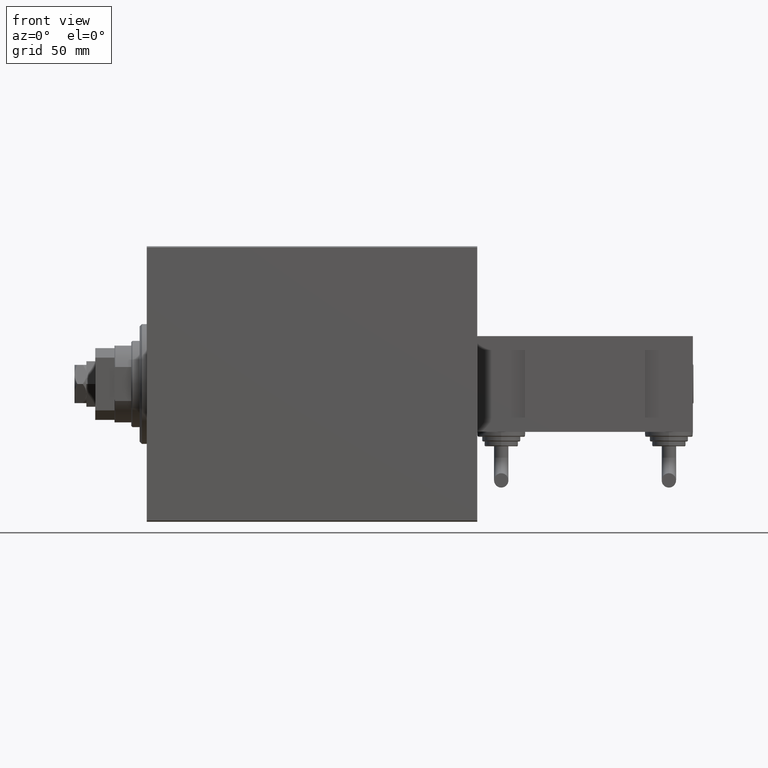
[diagram: clean part render]
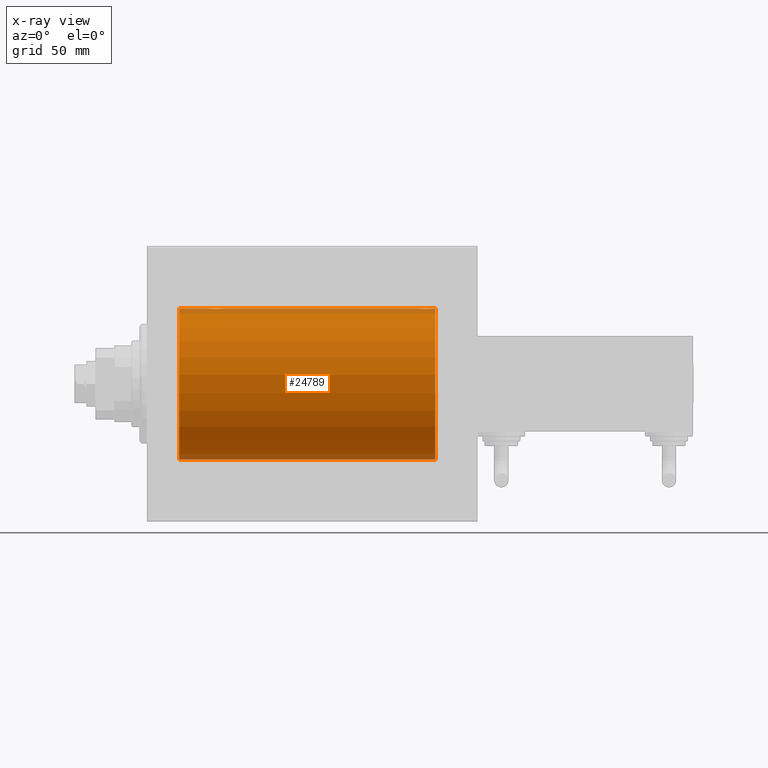
[diagram: x-ray — body ghosted, one internal face saturated and labeled with its STEP entity id]
A machine part, front view, then the same camera in x-ray: the body is ghosted and one INTERNAL B-rep face — a face not visible from any outside direction — is saturated and labeled: STEP entity #24789.
In plain terms, the highlighted cylindrical surface (partial cylindrical patch) has radius 31.5 mm, axis along (-1, -0, -0).
Its self-contained STEP definition (entity closure, byte-faithful):
#1268 = B_SPLINE_CURVE_WITH_KNOTS ( 'NONE', 3,
 ( #24838, #40250, #5621, #21028, #31437, #12204, #27628, #39264, #18229, #45036, #25068, #48840, #9892, #17979, #28876, #44285, #33666, #48092, #22028, #36711, #29366, #44523, #2841, #10144, #6607, #21273, #44781, #17230, #45274, #21774, #49090, #13688 ),
 .UNSPECIFIED., .F., .F.,
 ( 4, 2, 2, 2, 2, 2, 2, 2, 2, 2, 2, 2, 2, 2, 2, 4 ),
 ( 0.009384682587134639611, 0.009971088165454038837, 0.01055749374377343980, 0.01114389932209284076, 0.01173030490041223999, 0.01231671047873163921, 0.01290311605705104017, 0.01348952163537044113, 0.01407592721368984036, 0.01466233279200923958, 0.01524873837032864055, 0.01583514394864804151, 0.01642154952696744247, 0.01700795510528683996, 0.01759436068360624092, 0.01876717184024503243 ),
 .UNSPECIFIED. ) ;
#2191 = LINE ( 'NONE', #48432, #19058 ) ;
#2254 = DIRECTION ( 'NONE',  ( 0.000000000000000000, 0.000000000000000000, 1.000000000000000000 ) ) ;
#2330 = CARTESIAN_POINT ( 'NONE',  ( 32.00000000000000000, -3.906065418435112189E-16, 31.50000000000000000 ) ) ;
#2841 = CARTESIAN_POINT ( 'NONE',  ( 30.50098156296146712, -2.604888532024788983, 31.39229907792058683 ) ) ;
#2929 = VERTEX_POINT ( 'NONE', #42313 ) ;
#3257 = CARTESIAN_POINT ( 'NONE',  ( 115.7211808735768699, -2.903733559410697662, 31.36590199989305106 ) ) ;
#3387 = AXIS2_PLACEMENT_3D ( 'NONE', #25238, #6032, #2254 ) ;
#3565 = CARTESIAN_POINT ( 'NONE',  ( 13.49999999999999822, 3.857637417314162689E-15, -31.50000000000000000 ) ) ;
#4017 = CARTESIAN_POINT ( 'NONE',  ( 119.5000000000000284, -2.415502498297804861E-16, 31.50000000000000000 ) ) ;
#4487 = LINE ( 'NONE', #19890, #15845 ) ;
#5452 = EDGE_CURVE ( 'NONE', #44472, #33683, #25632, .T. ) ;
#5621 = CARTESIAN_POINT ( 'NONE',  ( 26.01898490608483527, -0.3904857149112033743, 31.49817436802766935 ) ) ;
#6032 = DIRECTION ( 'NONE',  ( -1.000000000000000000, 0.000000000000000000, 0.000000000000000000 ) ) ;
#6607 = CARTESIAN_POINT ( 'NONE',  ( 30.98143462873041898, -2.261012035264782227, 31.41905495618429356 ) ) ;
#7541 = CARTESIAN_POINT ( 'NONE',  ( 119.1019214043915468, -1.506272792558327245, 31.46439306106695710 ) ) ;
#7799 = CARTESIAN_POINT ( 'NONE',  ( 116.6958229443944361, -3.000152387858496805, 31.35680286115500337 ) ) ;
#8040 = CARTESIAN_POINT ( 'NONE',  ( 114.5153964007534029, -2.258226318633800300, 31.41925597582826413 ) ) ;
#8251 = AXIS2_PLACEMENT_3D ( 'NONE', #19984, #30863, #38700 ) ;
#8651 = DIRECTION ( 'NONE',  ( 0.000000000000000000, 0.000000000000000000, 1.000000000000000000 ) ) ;
#9892 = CARTESIAN_POINT ( 'NONE',  ( 27.66760041900836953, -2.695056442718533507, 31.38458855656185875 ) ) ;
#10144 = CARTESIAN_POINT ( 'NONE',  ( 30.82704225370267892, -2.387531469909770276, 31.40957782495776129 ) ) ;
#10183 = ORIENTED_EDGE ( 'NONE', *, *, #39575, .F. ) ;
#10735 = VERTEX_POINT ( 'NONE', #37708 ) ;
#11318 = CARTESIAN_POINT ( 'NONE',  ( 113.5189849060848672, -0.3904857149112073711, 31.49817436802766935 ) ) ;
#11576 = CARTESIAN_POINT ( 'NONE',  ( 114.2390453754387067, -1.981494824113344322, 31.43792153503156683 ) ) ;
#11828 = CARTESIAN_POINT ( 'NONE',  ( 118.0009815629615133, -2.604888532024798309, 31.39229907792057972 ) ) ;
#12204 = CARTESIAN_POINT ( 'NONE',  ( 26.30285761163300151, -1.328004386210305698, 31.47251238182140298 ) ) ;
#12726 = ORIENTED_EDGE ( 'NONE', *, *, #17596, .T. ) ;
#13688 = CARTESIAN_POINT ( 'NONE',  ( 32.00000000000000000, -3.906065418435112189E-16, 31.50000000000000000 ) ) ;
#14390 = CARTESIAN_POINT ( 'NONE',  ( 113.5000000000000142, -2.116947682205846230E-23, 31.50000000000000000 ) ) ;
#14599 = CARTESIAN_POINT ( 'NONE',  ( 117.8286541468751238, -2.696917666262913738, 31.38442820068732075 ) ) ;
#14852 = CARTESIAN_POINT ( 'NONE',  ( 118.4814346287304403, -2.261012035264784892, 31.41905495618427935 ) ) ;
#14958 = EDGE_CURVE ( 'NONE', #27513, #40704, #40495, .T. ) ;
#14971 = AXIS2_PLACEMENT_3D ( 'NONE', #17202, #28349, #8651 ) ;
#15112 = CARTESIAN_POINT ( 'NONE',  ( 113.5000000000000284, -0.1958045626907495562, 31.50000000000000000 ) ) ;
#15358 = CARTESIAN_POINT ( 'NONE',  ( 113.5000000000000142, -2.116947682205846230E-23, 31.50000000000000000 ) ) ;
#15538 = EDGE_CURVE ( 'NONE', #30591, #27513, #21317, .T. ) ;
#15621 = CARTESIAN_POINT ( 'NONE',  ( 113.8958221872527332, -1.502389880413010026, 31.46458023642405877 ) ) ;
#15845 = VECTOR ( 'NONE', #42643, 1000.000000000000000 ) ;
#17202 = CARTESIAN_POINT ( 'NONE',  ( 120.5000000000000000, 0.000000000000000000, 0.000000000000000000 ) ) ;
#17230 = CARTESIAN_POINT ( 'NONE',  ( 31.60192140439154684, -1.506272792558323470, 31.46439306106697131 ) ) ;
#17596 = EDGE_CURVE ( 'NONE', #10735, #33683, #1268, .T. ) ;
#17766 = CARTESIAN_POINT ( 'NONE',  ( 120.5000000000000000, 3.857637417314162689E-15, -31.50000000000000000 ) ) ;
#17979 = CARTESIAN_POINT ( 'NONE',  ( 28.03055544341478722, -2.845838211243333138, 31.37127560316186603 ) ) ;
#18229 = CARTESIAN_POINT ( 'NONE',  ( 26.73904537543869608, -1.981494824113328779, 31.43792153503155973 ) ) ;
#18900 = CARTESIAN_POINT ( 'NONE',  ( 115.5305554434148263, -2.845838211243349569, 31.37127560316188024 ) ) ;
#19058 = VECTOR ( 'NONE', #44631, 1000.000000000000000 ) ;
#19658 = CARTESIAN_POINT ( 'NONE',  ( 114.6695630851300081, -2.384935707362449087, 31.40977595730572958 ) ) ;
#19890 = CARTESIAN_POINT ( 'NONE',  ( 120.5000000000000000, 0.000000000000000000, 31.50000000000000000 ) ) ;
#19984 = CARTESIAN_POINT ( 'NONE',  ( 120.5000000000000000, 0.000000000000000000, 0.000000000000000000 ) ) ;
#21028 = CARTESIAN_POINT ( 'NONE',  ( 26.09580549261944427, -0.7775502215293862429, 31.49099686045558144 ) ) ;
#21087 = CARTESIAN_POINT ( 'NONE',  ( 120.5000000000000000, 0.000000000000000000, 31.50000000000000000 ) ) ;
#21273 = CARTESIAN_POINT ( 'NONE',  ( 31.25824501903266039, -1.984587626072074285, 31.43772577203672469 ) ) ;
#21317 = LINE ( 'NONE', #17766, #34085 ) ;
#21526 = EDGE_CURVE ( 'NONE', #44472, #43252, #48660, .T. ) ;
#21774 = CARTESIAN_POINT ( 'NONE',  ( 31.92020662950040943, -0.7905881588836116691, 31.49214662150068378 ) ) ;
#22028 = CARTESIAN_POINT ( 'NONE',  ( 29.39114547339941552, -2.980809450819701834, 31.35867074198615967 ) ) ;
#23246 = ORIENTED_EDGE ( 'NONE', *, *, #49272, .F. ) ;
#23318 = CARTESIAN_POINT ( 'NONE',  ( 120.5000000000000000, 3.857637417314162689E-15, -31.50000000000000000 ) ) ;
#23451 = CARTESIAN_POINT ( 'NONE',  ( 116.8911454733994617, -2.980809450819711159, 31.35867074198615967 ) ) ;
#24239 = ORIENTED_EDGE ( 'NONE', *, *, #14958, .T. ) ;
#24789 = ADVANCED_FACE ( 'NONE', ( #28850 ), #28104, .F. ) ;
#24838 = CARTESIAN_POINT ( 'NONE',  ( 26.00000000000000355, -2.117263226567934635E-23, 31.50000000000000000 ) ) ;
#25068 = CARTESIAN_POINT ( 'NONE',  ( 27.16956308512997964, -2.384935707362437096, 31.40977595730572958 ) ) ;
#25238 = CARTESIAN_POINT ( 'NONE',  ( 13.49999999999999822, 0.000000000000000000, 0.000000000000000000 ) ) ;
#25632 = LINE ( 'NONE', #21087, #41383 ) ;
#26719 = EDGE_LOOP ( 'NONE', ( #10183, #39783, #24239, #23246, #12726, #33372, #39224, #37473 ) ) ;
#26740 = CARTESIAN_POINT ( 'NONE',  ( 114.1149855772307404, -1.830470878313887884, 31.44719957596828053 ) ) ;
#27513 = VERTEX_POINT ( 'NONE', #3565 ) ;
#27624 = CIRCLE ( 'NONE', #8251, 31.50000000000000000 ) ;
#27628 = CARTESIAN_POINT ( 'NONE',  ( 26.39582218725271900, -1.502389880413001144, 31.46458023642405166 ) ) ;
#28104 = CYLINDRICAL_SURFACE ( 'NONE', #14971, 31.50000000000000000 ) ;
#28349 = DIRECTION ( 'NONE',  ( -1.000000000000000000, -0.000000000000000000, -0.000000000000000000 ) ) ;
#28850 = FACE_OUTER_BOUND ( 'NONE', #26719, .T. ) ;
#28876 = CARTESIAN_POINT ( 'NONE',  ( 28.22118087357680238, -2.903733559410683895, 31.36590199989303684 ) ) ;
#29366 = CARTESIAN_POINT ( 'NONE',  ( 29.96515729810641204, -2.847307171789037028, 31.37114183851420890 ) ) ;
#29879 = EDGE_CURVE ( 'NONE', #2929, #43252, #4487, .T. ) ;
#30030 = CARTESIAN_POINT ( 'NONE',  ( 119.4202066295004840, -0.7905881588836165541, 31.49214662150069088 ) ) ;
#30284 = CARTESIAN_POINT ( 'NONE',  ( 114.9954371499299839, -2.602826974226406076, 31.39247100434484850 ) ) ;
#30591 = VERTEX_POINT ( 'NONE', #23318 ) ;
#30863 = DIRECTION ( 'NONE',  ( -1.000000000000000000, 0.000000000000000000, 0.000000000000000000 ) ) ;
#31437 = CARTESIAN_POINT ( 'NONE',  ( 26.15339536257501507, -0.9669616078781987367, 31.48567319468626735 ) ) ;
#32119 = CARTESIAN_POINT ( 'NONE',  ( 119.5000000000000284, -2.415502498297804861E-16, 31.50000000000000000 ) ) ;
#33372 = ORIENTED_EDGE ( 'NONE', *, *, #5452, .F. ) ;
#33666 = CARTESIAN_POINT ( 'NONE',  ( 28.79953541025904684, -2.999845816735297266, 31.35683219171744796 ) ) ;
#33683 = VERTEX_POINT ( 'NONE', #2330 ) ;
#34084 = CARTESIAN_POINT ( 'NONE',  ( 116.2995354102590397, -2.999845816735307036, 31.35683219171744796 ) ) ;
#34085 = VECTOR ( 'NONE', #36754, 1000.000000000000000 ) ;
#34599 = CARTESIAN_POINT ( 'NONE',  ( 118.7582450190326995, -1.984587626072075617, 31.43772577203671759 ) ) ;
#36711 = CARTESIAN_POINT ( 'NONE',  ( 29.77469094434372821, -2.904836261170106404, 31.36579955910873707 ) ) ;
#36754 = DIRECTION ( 'NONE',  ( -1.000000000000000000, -0.000000000000000000, -0.000000000000000000 ) ) ;
#37473 = ORIENTED_EDGE ( 'NONE', *, *, #29879, .F. ) ;
#37708 = CARTESIAN_POINT ( 'NONE',  ( 26.00000000000000355, -2.117263226567934635E-23, 31.50000000000000000 ) ) ;
#38116 = CARTESIAN_POINT ( 'NONE',  ( 113.8028576116330726, -1.328004386210315024, 31.47251238182141719 ) ) ;
#38637 = CARTESIAN_POINT ( 'NONE',  ( 113.6533953625750115, -0.9669616078782070634, 31.48567319468626735 ) ) ;
#38700 = DIRECTION ( 'NONE',  ( 0.000000000000000000, 0.000000000000000000, 1.000000000000000000 ) ) ;
#38872 = CARTESIAN_POINT ( 'NONE',  ( 118.8824687226663315, -1.833765390051044442, 31.44700610425689291 ) ) ;
#39224 = ORIENTED_EDGE ( 'NONE', *, *, #21526, .T. ) ;
#39264 = CARTESIAN_POINT ( 'NONE',  ( 26.61498557723073333, -1.830470878313877892, 31.44719957596828053 ) ) ;
#39575 = EDGE_CURVE ( 'NONE', #30591, #2929, #27624, .T. ) ;
#39783 = ORIENTED_EDGE ( 'NONE', *, *, #15538, .T. ) ;
#40250 = CARTESIAN_POINT ( 'NONE',  ( 26.00000000000001066, -0.1958045626907463088, 31.50000000000000711 ) ) ;
#40495 = CIRCLE ( 'NONE', #3387, 31.50000000000000000 ) ;
#40704 = VERTEX_POINT ( 'NONE', #44054 ) ;
#41051 = DIRECTION ( 'NONE',  ( -1.000000000000000000, -0.000000000000000000, -0.000000000000000000 ) ) ;
#41383 = VECTOR ( 'NONE', #41051, 1000.000000000000000 ) ;
#41660 = CARTESIAN_POINT ( 'NONE',  ( 116.1046588899990724, -2.980257240990066947, 31.35872356503798031 ) ) ;
#42159 = CARTESIAN_POINT ( 'NONE',  ( 115.1676004190083944, -2.695056442718549494, 31.38458855656185875 ) ) ;
#42313 = CARTESIAN_POINT ( 'NONE',  ( 120.5000000000000000, 0.000000000000000000, 31.50000000000000000 ) ) ;
#42643 = DIRECTION ( 'NONE',  ( -1.000000000000000000, -0.000000000000000000, -0.000000000000000000 ) ) ;
#43252 = VERTEX_POINT ( 'NONE', #32119 ) ;
#44054 = CARTESIAN_POINT ( 'NONE',  ( 13.49999999999999822, 0.000000000000000000, 31.50000000000000000 ) ) ;
#44285 = CARTESIAN_POINT ( 'NONE',  ( 28.60465888999904749, -2.980257240990054513, 31.35872356503797320 ) ) ;
#44472 = VERTEX_POINT ( 'NONE', #14390 ) ;
#44523 = CARTESIAN_POINT ( 'NONE',  ( 30.32865414687508832, -2.696917666262907520, 31.38442820068731365 ) ) ;
#44631 = DIRECTION ( 'NONE',  ( -1.000000000000000000, -0.000000000000000000, -0.000000000000000000 ) ) ;
#44781 = CARTESIAN_POINT ( 'NONE',  ( 31.38246872266631371, -1.833765390051040223, 31.44700610425690712 ) ) ;
#45036 = CARTESIAN_POINT ( 'NONE',  ( 27.01539640075335669, -2.258226318633785201, 31.41925597582825702 ) ) ;
#45274 = CARTESIAN_POINT ( 'NONE',  ( 31.69529642359010424, -1.331741824817659348, 31.47235367475393630 ) ) ;
#45706 = CARTESIAN_POINT ( 'NONE',  ( 119.1952964235901504, -1.331741824817663122, 31.47235367475394341 ) ) ;
#46218 = CARTESIAN_POINT ( 'NONE',  ( 119.5000000000000426, -0.3965830985361750161, 31.50000000000000000 ) ) ;
#46476 = CARTESIAN_POINT ( 'NONE',  ( 117.2746909443437460, -2.904836261170115730, 31.36579955910872997 ) ) ;
#48092 = CARTESIAN_POINT ( 'NONE',  ( 29.19582294439440417, -3.000152387858486147, 31.35680286115499626 ) ) ;
#48432 = CARTESIAN_POINT ( 'NONE',  ( 120.5000000000000000, 0.000000000000000000, 31.50000000000000000 ) ) ;
#48660 = B_SPLINE_CURVE_WITH_KNOTS ( 'NONE', 3,
 ( #15358, #15112, #11318, #50022, #38637, #38116, #15621, #26740, #11576, #8040, #19658, #30284, #42159, #18900, #3257, #41660, #34084, #7799, #23451, #46476, #49513, #14599, #11828, #49770, #14852, #34599, #38872, #7541, #45706, #30030, #46218, #4017 ),
 .UNSPECIFIED., .F., .F.,
 ( 4, 2, 2, 2, 2, 2, 2, 2, 2, 2, 2, 2, 2, 2, 2, 4 ),
 ( 0.009384682587134660428, 0.009971088165454063124, 0.01055749374377346582, 0.01114389932209286851, 0.01173030490041227121, 0.01231671047873167217, 0.01290311605705107313, 0.01348952163537047583, 0.01407592721368987679, 0.01466233279200927775, 0.01524873837032867871, 0.01583514394864807967, 0.01642154952696748410, 0.01700795510528688506, 0.01759436068360628602, 0.01876717184024507407 ),
 .UNSPECIFIED. ) ;
#48840 = CARTESIAN_POINT ( 'NONE',  ( 27.49543714993000876, -2.602826974226395862, 31.39247100434485560 ) ) ;
#49090 = CARTESIAN_POINT ( 'NONE',  ( 32.00000000000001421, -0.3965830985361748495, 31.50000000000001421 ) ) ;
#49272 = EDGE_CURVE ( 'NONE', #10735, #40704, #2191, .T. ) ;
#49513 = CARTESIAN_POINT ( 'NONE',  ( 117.4651572981064191, -2.847307171789044133, 31.37114183851420890 ) ) ;
#49770 = CARTESIAN_POINT ( 'NONE',  ( 118.3270422537027144, -2.387531469909779158, 31.40957782495775419 ) ) ;
#50022 = CARTESIAN_POINT ( 'NONE',  ( 113.5958054926194620, -0.7775502215293907948, 31.49099686045558855 ) ) ;